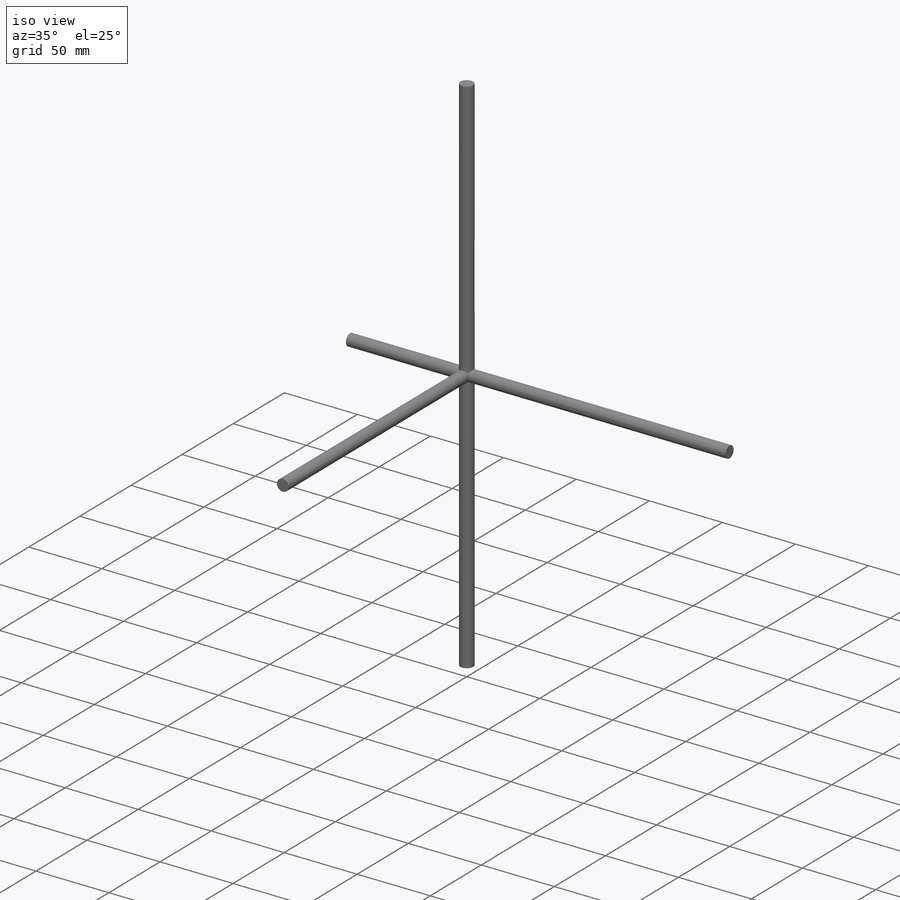
[diagram: iso view]
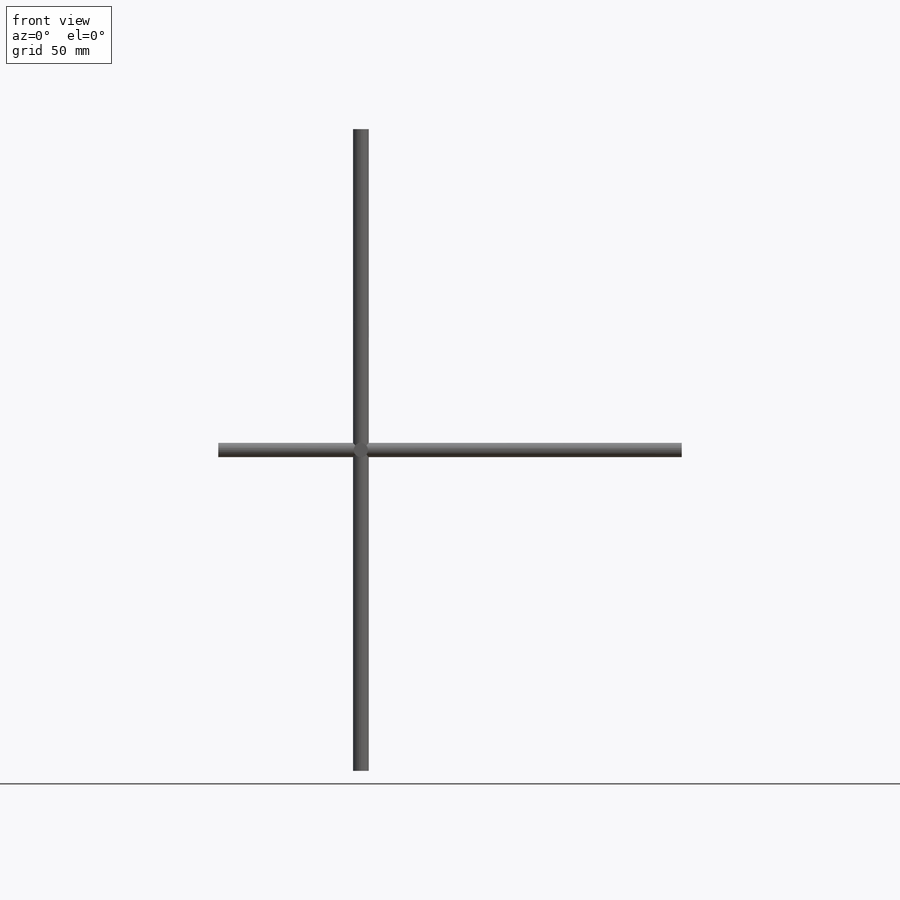
[diagram: front view]
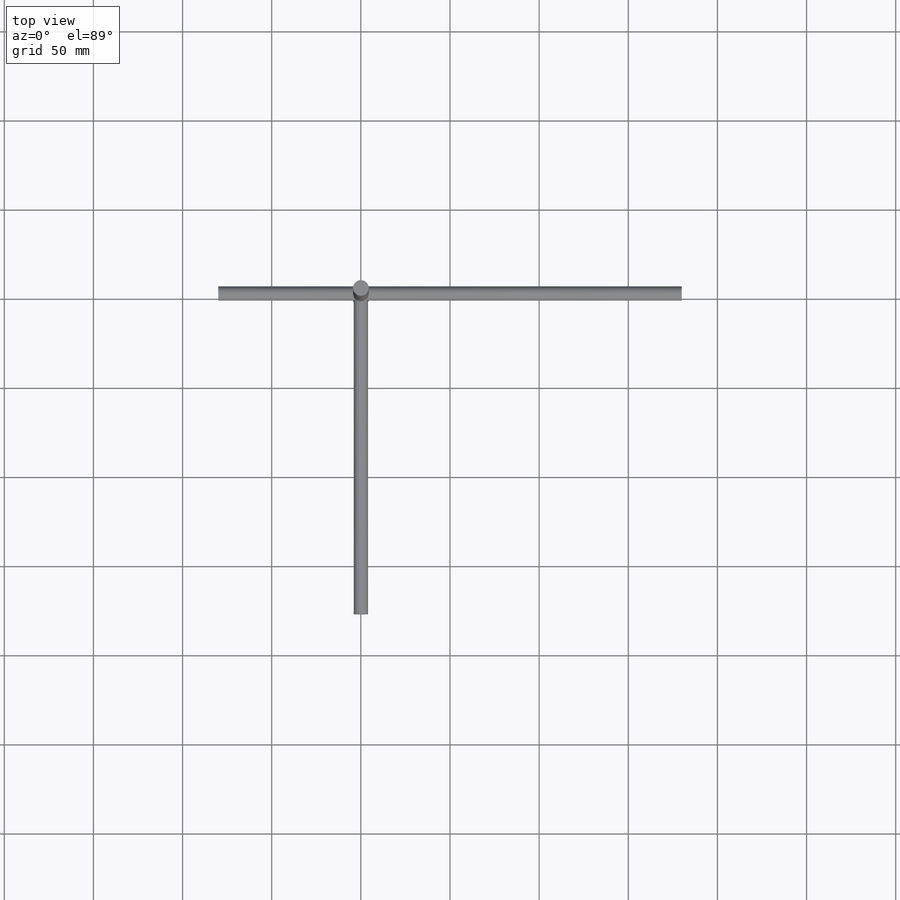
[diagram: top view]
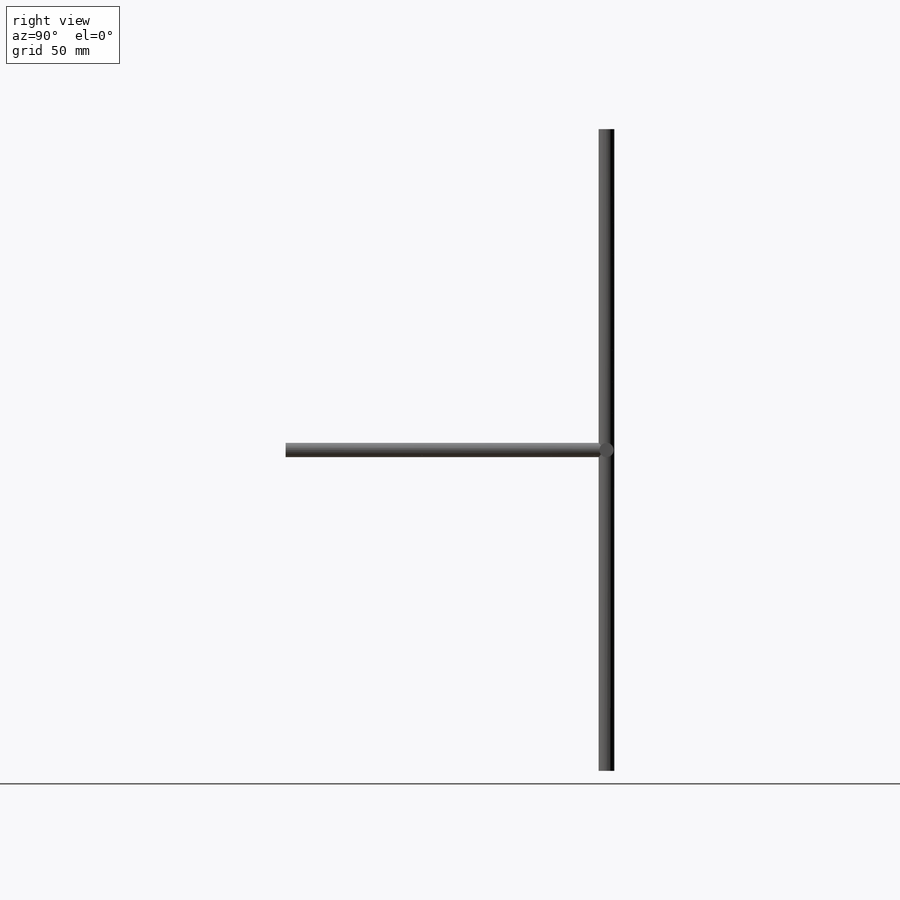
[diagram: right view]
SOLIDWORKS PART (.sldprt)
format: sldprt  version: not decoded by parser v0  size: 128,000 bytes
history: native  units: mm
features: sketch x6, extrude x5, plane x3, material x1 (+8 scaffold rows collapsed)
feature tree (23):
  scaffold x8  (default folders/planes/origin — collapsed)
  material  "Material <sin especificar>"
  plane  "Alzado"
  plane  "Planta"
  plane  "Vista lateral"
  sketch  "Croquis1"  dims[D1=~4.181867mm]
  extrude  "Saliente-Extruir1"  Depth=180mm
  sketch  "Croquis4"
  extrude  "Saliente-Extruir2"  Depth=180mm
  sketch  "Croquis5"  dims[D1=~5.034049mm]
  extrude  "Saliente-Extruir3"  Depth=180mm
  sketch  "Croquis6"  dims[D1=~4.54269mm]
  extrude  "Saliente-Extruir4"  Depth=80mm
  sketch  "Croquis7"  dims[D1=5.0mm]
  extrude  "Saliente-Extruir5"  Depth=180mm
  sketch  "Croquis8"
decode coverage: 9 of 11 modeling features carry decoded parameters
note: ~ marks probable driven/reference dimensions
note: suppression state not decoded; provenance and decode notes live in map.json
